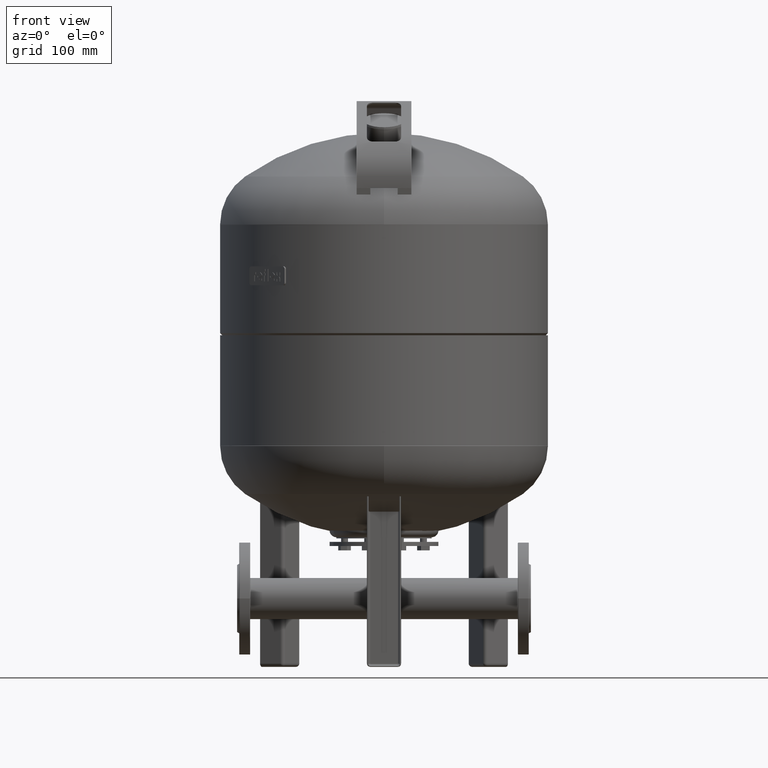
[diagram: clean part render]
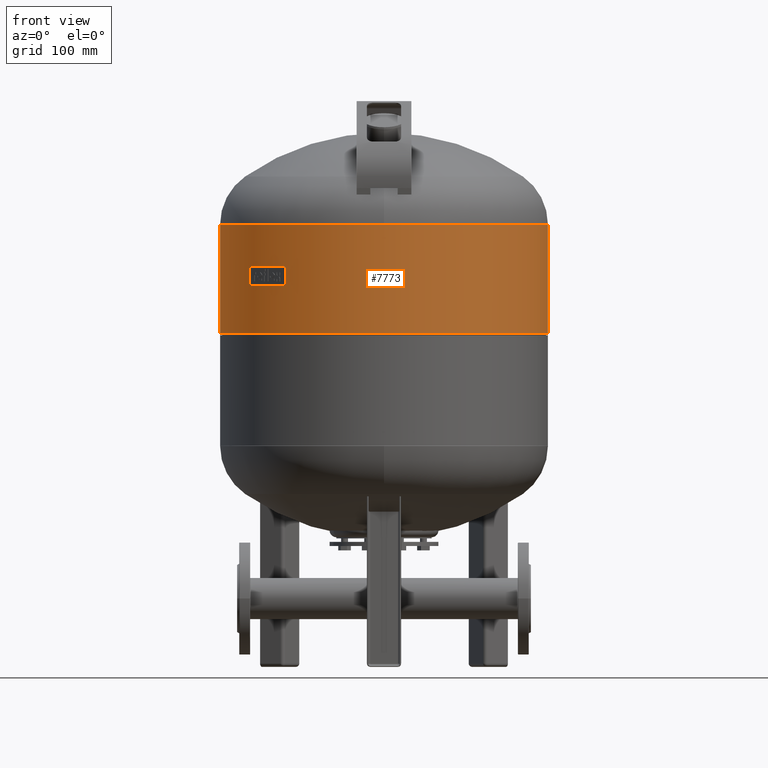
[diagram: same view with one face highlighted and labeled with its STEP entity id]
A machine part, front view. The second image highlights one B-rep face of the part: STEP entity #7773.
In plain terms, the highlighted cylindrical surface (partial cylindrical patch) has radius 240 mm, axis along (0, 0, 1).
Its self-contained STEP definition (entity closure, byte-faithful):
#7732=CARTESIAN_POINT('',(-1.469576E-014,-2.204364E-014,605.500000000000000));
#7733=DIRECTION('',(0.0,0.0,1.0));
#7734=DIRECTION('',(1.0,0.0,0.0));
#7735=AXIS2_PLACEMENT_3D('',#7732,#7733,#7734);
#7736=CYLINDRICAL_SURFACE('',#7735,240.0);
#7737=CARTESIAN_POINT('',(239.999999999999970,-2.204364E-014,647.0));
#7738=VERTEX_POINT('',#7737);
#7739=CARTESIAN_POINT('',(240.0,-5.510911E-016,488.500000000000000));
#7740=VERTEX_POINT('',#7739);
#7741=CARTESIAN_POINT('',(239.999999999999970,-2.204364E-014,647.0));
#7742=DIRECTION('',(0.0,0.0,-1.0));
#7743=VECTOR('',#7742,158.500000000000000);
#7744=LINE('',#7741,#7743);
#7745=EDGE_CURVE('',#7738,#7740,#7744,.T.);
#7746=ORIENTED_EDGE('',*,*,#7745,.F.);
#7747=CARTESIAN_POINT('',(-240.000000000000030,-5.143419E-014,647.0));
#7748=VERTEX_POINT('',#7747);
#7749=CARTESIAN_POINT('',(-1.469576E-014,-2.204364E-014,647.0));
#7750=DIRECTION('',(0.0,0.0,-1.0));
#7751=DIRECTION('',(1.0,0.0,0.0));
#7752=AXIS2_PLACEMENT_3D('',#7749,#7750,#7751);
#7753=CIRCLE('',#7752,240.0);
#7754=EDGE_CURVE('',#7738,#7748,#7753,.T.);
#7755=ORIENTED_EDGE('',*,*,#7754,.T.);
#7756=CARTESIAN_POINT('',(-240.0,2.883946E-014,488.500000000000000));
#7757=VERTEX_POINT('',#7756);
#7758=CARTESIAN_POINT('',(-240.000000000000030,-5.143419E-014,647.0));
#7759=DIRECTION('',(0.0,0.0,-1.0));
#7760=VECTOR('',#7759,158.500000000000000);
#7761=LINE('',#7758,#7760);
#7762=EDGE_CURVE('',#7748,#7757,#7761,.T.);
#7763=ORIENTED_EDGE('',*,*,#7762,.T.);
#7764=CARTESIAN_POINT('',(-3.673940E-016,-5.510911E-016,488.500000000000000));
#7765=DIRECTION('',(0.0,0.0,-1.0));
#7766=DIRECTION('',(1.0,0.0,0.0));
#7767=AXIS2_PLACEMENT_3D('',#7764,#7765,#7766);
#7768=CIRCLE('',#7767,240.0);
#7769=EDGE_CURVE('',#7740,#7757,#7768,.T.);
#7770=ORIENTED_EDGE('',*,*,#7769,.F.);
#7771=EDGE_LOOP('',(#7746,#7755,#7763,#7770));
#7772=FACE_OUTER_BOUND('',#7771,.T.);
#7773=ADVANCED_FACE('',(#7772),#7736,.T.);